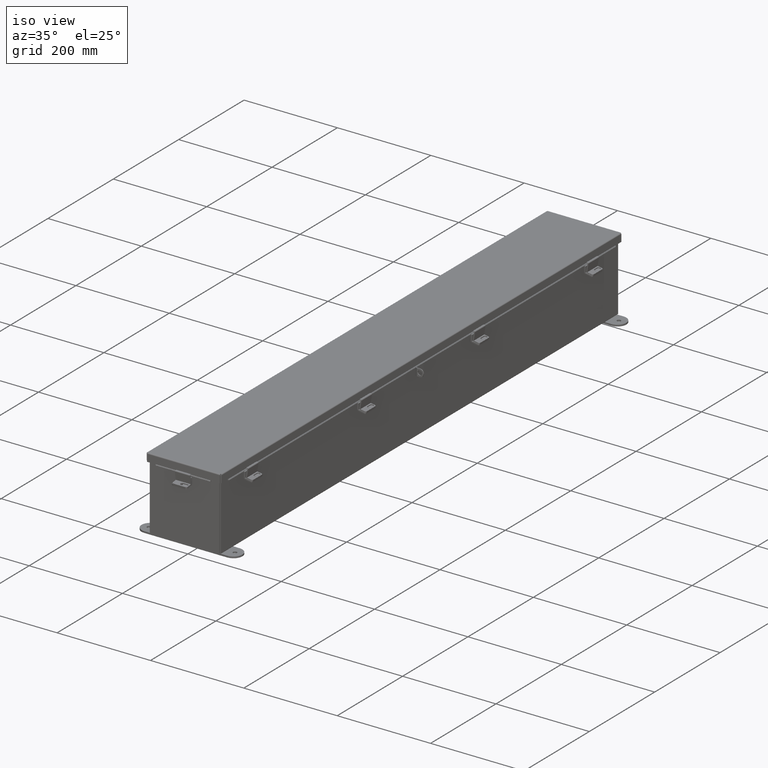
[diagram: clean part render]
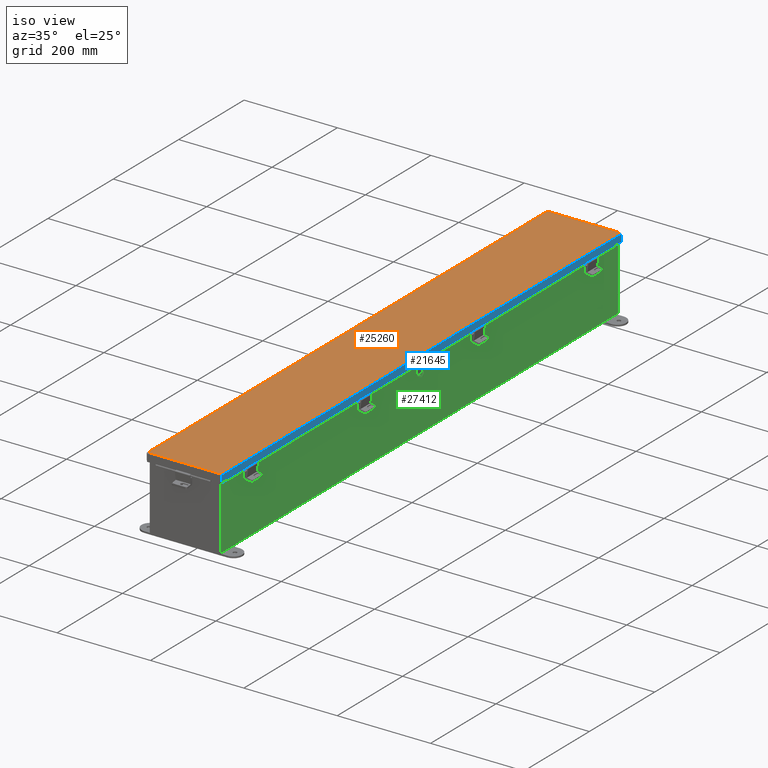
[diagram: same view with three faces highlighted in distinct colors, each labeled with its STEP entity id]
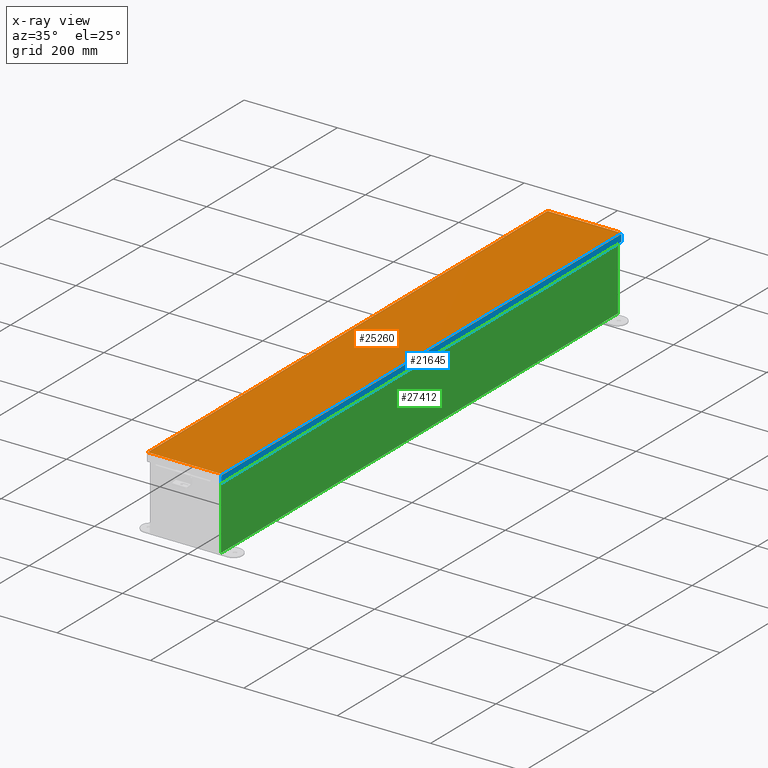
[diagram: x-ray of the same camera — body ghosted, the three highlighted faces saturated]
A machine part, iso view with three faces highlighted in distinct colors.
The next image is the same camera in x-ray (body ghosted, the three faces saturated) — at least one of them is partly hidden behind the body in this view.
Their STEP definitions:

[orange] entity #25260 — the highlighted planar face has unit normal (0, -0, 1).
#2029 = PLANE ( 'NONE',  #34678 ) ;
#2729 = FACE_OUTER_BOUND ( 'NONE', #16611, .T. ) ;
#3243 = DIRECTION ( 'NONE',  ( 3.777126213078897300E-030, 1.000000000000000000, -8.874685183736382800E-031 ) ) ;
#4338 = VECTOR ( 'NONE', #30733, 39.37007874015748100 ) ;
#6095 = CARTESIAN_POINT ( 'NONE',  ( -3.068550000000013000, -24.07447893218812500, -0.07470000000000125200 ) ) ;
#8213 = VERTEX_POINT ( 'NONE', #31915 ) ;
#9779 = VERTEX_POINT ( 'NONE', #20418 ) ;
#9999 = CARTESIAN_POINT ( 'NONE',  ( -3.068550000000013400, 24.06855000000000500, -0.07470000000000015500 ) ) ;
#10004 = VERTEX_POINT ( 'NONE', #27164 ) ;
#10557 = DIRECTION ( 'NONE',  ( 7.888609052210086500E-031, 5.916456789157564900E-031, -1.000000000000000000 ) ) ;
#10753 = DIRECTION ( 'NONE',  ( -1.000000000000000000, -3.826430019655189500E-030, -7.888609052210086500E-031 ) ) ;
#10808 = ORIENTED_EDGE ( 'NONE', *, *, #22048, .T. ) ;
#11849 = LINE ( 'NONE', #16022, #4338 ) ;
#13028 = LINE ( 'NONE', #6095, #32908 ) ;
#13086 = ORIENTED_EDGE ( 'NONE', *, *, #27652, .T. ) ;
#13115 = VERTEX_POINT ( 'NONE', #9999 ) ;
#16022 = CARTESIAN_POINT ( 'NONE',  ( -3.074478932188149800, 24.06855000000000500, -0.07470000000000015500 ) ) ;
#16611 = EDGE_LOOP ( 'NONE', ( #25605, #23640, #13086, #10808 ) ) ;
#19388 = VECTOR ( 'NONE', #36541, 39.37007874015748100 ) ;
#19657 = CARTESIAN_POINT ( 'NONE',  ( 3.068550000000006300, 24.07447893218813600, -0.07469999999999907300 ) ) ;
#20304 = VECTOR ( 'NONE', #10753, 39.37007874015748100 ) ;
#20418 = CARTESIAN_POINT ( 'NONE',  ( 3.068550000000006300, 24.06855000000000500, -0.07469999999999907300 ) ) ;
#22048 = EDGE_CURVE ( 'NONE', #8213, #13115, #13028, .T. ) ;
#22126 = CARTESIAN_POINT ( 'NONE',  ( 3.074478932188143200, -24.06855000000000200, -0.07470000000000015500 ) ) ;
#23640 = ORIENTED_EDGE ( 'NONE', *, *, #28238, .T. ) ;
#25128 = LINE ( 'NONE', #19657, #19388 ) ;
#25260 = ADVANCED_FACE ( 'NONE', ( #2729 ), #2029, .T. ) ;
#25605 = ORIENTED_EDGE ( 'NONE', *, *, #28182, .T. ) ;
#27164 = CARTESIAN_POINT ( 'NONE',  ( 3.068550000000006800, -24.06855000000000200, -0.07470000000000015500 ) ) ;
#27473 = CARTESIAN_POINT ( 'NONE',  ( 0.0000000000000000000, -4.802076551362963100E-018, -0.07470000000000015500 ) ) ;
#27652 = EDGE_CURVE ( 'NONE', #10004, #8213, #27798, .T. ) ;
#27798 = LINE ( 'NONE', #22126, #20304 ) ;
#28182 = EDGE_CURVE ( 'NONE', #13115, #9779, #11849, .T. ) ;
#28238 = EDGE_CURVE ( 'NONE', #9779, #10004, #25128, .T. ) ;
#30287 = DIRECTION ( 'NONE',  ( -1.000000000000000000, -3.826430019655189500E-030, -7.888609052210086500E-031 ) ) ;
#30733 = DIRECTION ( 'NONE',  ( 1.000000000000000000, 3.826430019655189500E-030, 7.888609052210086500E-031 ) ) ;
#31915 = CARTESIAN_POINT ( 'NONE',  ( -3.068550000000013000, -24.06855000000000200, -0.07470000000000125200 ) ) ;
#32908 = VECTOR ( 'NONE', #3243, 39.37007874015748100 ) ;
#34678 = AXIS2_PLACEMENT_3D ( 'NONE', #27473, #10557, #30287 ) ;
#36541 = DIRECTION ( 'NONE',  ( -3.777126213078897300E-030, -1.000000000000000000, 8.874685183736382800E-031 ) ) ;

[blue] entity #21645 — the highlighted planar face has unit normal (-1, 0, -0).
#396 = DIRECTION ( 'NONE',  ( 3.777126213078897300E-030, 1.000000000000000000, -8.874685183736382800E-031 ) ) ;
#1006 = VECTOR ( 'NONE', #19811, 39.37007874015748100 ) ;
#1103 = LINE ( 'NONE', #24577, #14364 ) ;
#1563 = CARTESIAN_POINT ( 'NONE',  ( -3.156250000000015100, 0.0000000000000000000, 0.6122999999999994000 ) ) ;
#1644 = EDGE_LOOP ( 'NONE', ( #24758, #20666, #9198, #14357, #36323, #23340, #27681, #28835 ) ) ;
#2159 = CARTESIAN_POINT ( 'NONE',  ( -3.156250000000015100, 23.32447893218813600, 0.6123000000000005100 ) ) ;
#2182 = EDGE_CURVE ( 'NONE', #6908, #17760, #21444, .T. ) ;
#3225 = CARTESIAN_POINT ( 'NONE',  ( -3.156250000000015100, -23.32447893218812500, 0.6122999999999994000 ) ) ;
#4781 = VERTEX_POINT ( 'NONE', #23528 ) ;
#5622 = VECTOR ( 'NONE', #27010, 39.37007874015748100 ) ;
#6557 = LINE ( 'NONE', #6612, #20719 ) ;
#6612 = CARTESIAN_POINT ( 'NONE',  ( -3.156250000000008000, -24.07447893218813200, -1.202013117212275700E-014 ) ) ;
#6791 = VERTEX_POINT ( 'NONE', #10877 ) ;
#6908 = VERTEX_POINT ( 'NONE', #11493 ) ;
#6950 = CARTESIAN_POINT ( 'NONE',  ( -3.156250000000008000, 0.0000000000000000000, -1.202013117212275700E-014 ) ) ;
#7753 = VERTEX_POINT ( 'NONE', #29972 ) ;
#8219 = LINE ( 'NONE', #14875, #26329 ) ;
#8519 = LINE ( 'NONE', #31011, #1006 ) ;
#9198 = ORIENTED_EDGE ( 'NONE', *, *, #29927, .F. ) ;
#9328 = DIRECTION ( 'NONE',  ( -3.569293475308526100E-015, -5.916456789157564900E-031, 1.000000000000000000 ) ) ;
#10498 = VERTEX_POINT ( 'NONE', #2159 ) ;
#10797 = VECTOR ( 'NONE', #396, 39.37007874015748100 ) ;
#10877 = CARTESIAN_POINT ( 'NONE',  ( -3.156250000000015100, 23.32447893218812900, 0.5967115427318782100 ) ) ;
#11346 = LINE ( 'NONE', #1563, #5622 ) ;
#11493 = CARTESIAN_POINT ( 'NONE',  ( -3.156250000000015100, -23.32447893218810000, 0.5967115427318772100 ) ) ;
#12561 = VECTOR ( 'NONE', #24834, 39.37007874015748100 ) ;
#14357 = ORIENTED_EDGE ( 'NONE', *, *, #29974, .F. ) ;
#14364 = VECTOR ( 'NONE', #16030, 39.37007874015748100 ) ;
#14875 = CARTESIAN_POINT ( 'NONE',  ( -3.156250000000018200, 23.32447893218813600, 0.6123000000000005100 ) ) ;
#15908 = EDGE_CURVE ( 'NONE', #10498, #4781, #18293, .T. ) ;
#15910 = CARTESIAN_POINT ( 'NONE',  ( -3.156250000000014200, -23.32447893218810000, 0.5967115427318772100 ) ) ;
#16030 = DIRECTION ( 'NONE',  ( -3.569293475308526100E-015, -5.916456789157564900E-031, 1.000000000000000000 ) ) ;
#16293 = CARTESIAN_POINT ( 'NONE',  ( -3.156250000000008000, 24.15625000000000000, 0.01300000000000010700 ) ) ;
#16839 = CARTESIAN_POINT ( 'NONE',  ( -3.156250000000008000, 24.07447893218813600, 0.01299999999999901400 ) ) ;
#17760 = VERTEX_POINT ( 'NONE', #3225 ) ;
#18125 = VERTEX_POINT ( 'NONE', #19136 ) ;
#18293 = LINE ( 'NONE', #22981, #10797 ) ;
#18320 = DIRECTION ( 'NONE',  ( 3.569293475308526100E-015, 5.916456789157564900E-031, -1.000000000000000000 ) ) ;
#19136 = CARTESIAN_POINT ( 'NONE',  ( -3.156250000000008000, -24.07447893218812500, 0.01299999999999792100 ) ) ;
#19811 = DIRECTION ( 'NONE',  ( -3.777126213078898000E-030, -1.000000000000000000, 8.874685183736384600E-031 ) ) ;
#20570 = DIRECTION ( 'NONE',  ( 2.453473827042056900E-013, -2.803970088048054700E-013, -1.000000000000000000 ) ) ;
#20573 = VECTOR ( 'NONE', #35655, 39.37007874015748100 ) ;
#20666 = ORIENTED_EDGE ( 'NONE', *, *, #15908, .T. ) ;
#20719 = VECTOR ( 'NONE', #9328, 39.37007874015748100 ) ;
#21133 = EDGE_CURVE ( 'NONE', #7753, #17760, #11346, .T. ) ;
#21444 = LINE ( 'NONE', #15910, #20573 ) ;
#21556 = EDGE_CURVE ( 'NONE', #10498, #6791, #8219, .T. ) ;
#21645 = ADVANCED_FACE ( 'NONE', ( #30279 ), #32384, .F. ) ;
#22935 = VERTEX_POINT ( 'NONE', #16839 ) ;
#22981 = CARTESIAN_POINT ( 'NONE',  ( -3.156250000000015100, 0.0000000000000000000, 0.6122999999999994000 ) ) ;
#23340 = ORIENTED_EDGE ( 'NONE', *, *, #21133, .T. ) ;
#23528 = CARTESIAN_POINT ( 'NONE',  ( -3.156250000000015100, 24.07447893218813600, 0.6122999999999994000 ) ) ;
#24577 = CARTESIAN_POINT ( 'NONE',  ( -3.156250000000008000, 24.07447893218813600, 0.0000000000000000000 ) ) ;
#24758 = ORIENTED_EDGE ( 'NONE', *, *, #21556, .F. ) ;
#24834 = DIRECTION ( 'NONE',  ( 3.861707972790487500E-030, 1.000000000000000000, 3.392721958496277400E-017 ) ) ;
#26329 = VECTOR ( 'NONE', #20570, 39.37007874015748100 ) ;
#26746 = EDGE_CURVE ( 'NONE', #18125, #7753, #6557, .T. ) ;
#27010 = DIRECTION ( 'NONE',  ( 3.777126213078897300E-030, 1.000000000000000000, -8.874685183736382800E-031 ) ) ;
#27681 = ORIENTED_EDGE ( 'NONE', *, *, #2182, .F. ) ;
#28835 = ORIENTED_EDGE ( 'NONE', *, *, #31316, .F. ) ;
#29927 = EDGE_CURVE ( 'NONE', #22935, #4781, #1103, .T. ) ;
#29972 = CARTESIAN_POINT ( 'NONE',  ( -3.156250000000015100, -24.07447893218812500, 0.6122999999999994000 ) ) ;
#29974 = EDGE_CURVE ( 'NONE', #18125, #22935, #35095, .T. ) ;
#30279 = FACE_OUTER_BOUND ( 'NONE', #1644, .T. ) ;
#31011 = CARTESIAN_POINT ( 'NONE',  ( -3.156250000000014200, 23.32447893218812500, 0.5967115427318782100 ) ) ;
#31316 = EDGE_CURVE ( 'NONE', #6791, #6908, #8519, .T. ) ;
#32384 = PLANE ( 'NONE',  #33402 ) ;
#33402 = AXIS2_PLACEMENT_3D ( 'NONE', #6950, #35221, #18320 ) ;
#35095 = LINE ( 'NONE', #16293, #12561 ) ;
#35221 = DIRECTION ( 'NONE',  ( 1.000000000000000000, 3.827267365164366100E-030, 3.569293475308526100E-015 ) ) ;
#35655 = DIRECTION ( 'NONE',  ( -7.009925220119514400E-014, -1.682382052828678100E-012, 1.000000000000000000 ) ) ;
#36323 = ORIENTED_EDGE ( 'NONE', *, *, #26746, .T. ) ;

[green] entity #27412 — the highlighted planar face has unit normal (-1, 0, 0).
#4 = EDGE_LOOP ( 'NONE', ( #23713, #14377, #26940, #16882 ) ) ;
#84 = LINE ( 'NONE', #31766, #35846 ) ;
#1190 = VERTEX_POINT ( 'NONE', #23220 ) ;
#2171 = EDGE_CURVE ( 'NONE', #16577, #28621, #7292, .T. ) ;
#3372 = EDGE_CURVE ( 'NONE', #16577, #32584, #34644, .T. ) ;
#5350 = EDGE_CURVE ( 'NONE', #1190, #32584, #84, .T. ) ;
#6685 = EDGE_CURVE ( 'NONE', #28621, #1190, #9240, .T. ) ;
#7292 = LINE ( 'NONE', #7396, #35558 ) ;
#7396 = CARTESIAN_POINT ( 'NONE',  ( 2.999999999999997300, 23.92530000000000000, -1.062859610035002400E-014 ) ) ;
#8264 = AXIS2_PLACEMENT_3D ( 'NONE', #29386, #12470, #32237 ) ;
#8369 = VECTOR ( 'NONE', #18926, 39.37007874015748100 ) ;
#9240 = LINE ( 'NONE', #27311, #8369 ) ;
#9934 = CARTESIAN_POINT ( 'NONE',  ( 3.000000000000017800, 23.92529999999997200, 5.837599999999999200 ) ) ;
#12014 = DIRECTION ( 'NONE',  ( -3.455316574900958600E-015, 0.0000000000000000000, -1.000000000000000000 ) ) ;
#12324 = FACE_OUTER_BOUND ( 'NONE', #4, .T. ) ;
#12470 = DIRECTION ( 'NONE',  ( -1.000000000000000000, 0.0000000000000000000, 3.455316574900958600E-015 ) ) ;
#14377 = ORIENTED_EDGE ( 'NONE', *, *, #5350, .T. ) ;
#16577 = VERTEX_POINT ( 'NONE', #26038 ) ;
#16882 = ORIENTED_EDGE ( 'NONE', *, *, #2171, .T. ) ;
#17462 = CARTESIAN_POINT ( 'NONE',  ( 2.999999999999997300, -23.92529999999998200, 0.01299999999999984300 ) ) ;
#18926 = DIRECTION ( 'NONE',  ( -0.0000000000000000000, -1.000000000000000000, -0.0000000000000000000 ) ) ;
#19682 = VECTOR ( 'NONE', #29098, 39.37007874015748100 ) ;
#23220 = CARTESIAN_POINT ( 'NONE',  ( 3.000000000000017800, -23.92529999999998600, 5.837599999999999200 ) ) ;
#23713 = ORIENTED_EDGE ( 'NONE', *, *, #6685, .T. ) ;
#26038 = CARTESIAN_POINT ( 'NONE',  ( 2.999999999999997300, 23.92529999999998900, 0.01299999999999984300 ) ) ;
#26940 = ORIENTED_EDGE ( 'NONE', *, *, #3372, .F. ) ;
#27311 = CARTESIAN_POINT ( 'NONE',  ( 3.000000000000017800, 23.92529999999999600, 5.837599999999999200 ) ) ;
#27412 = ADVANCED_FACE ( 'NONE', ( #12324 ), #32117, .F. ) ;
#28621 = VERTEX_POINT ( 'NONE', #9934 ) ;
#29098 = DIRECTION ( 'NONE',  ( -0.0000000000000000000, -1.000000000000000000, -0.0000000000000000000 ) ) ;
#29215 = CARTESIAN_POINT ( 'NONE',  ( 2.999999999999997300, -23.92529999999998600, 0.01299999999999984300 ) ) ;
#29386 = CARTESIAN_POINT ( 'NONE',  ( 2.999999999999997300, 0.0000000000000000000, -1.062859610035002400E-014 ) ) ;
#29981 = DIRECTION ( 'NONE',  ( 3.455316574900958600E-015, 0.0000000000000000000, 1.000000000000000000 ) ) ;
#31766 = CARTESIAN_POINT ( 'NONE',  ( 2.999999999999997300, -23.92529999999998600, -1.062859610035002400E-014 ) ) ;
#32117 = PLANE ( 'NONE',  #8264 ) ;
#32237 = DIRECTION ( 'NONE',  ( 3.455316574900958600E-015, 0.0000000000000000000, 1.000000000000000000 ) ) ;
#32584 = VERTEX_POINT ( 'NONE', #17462 ) ;
#34644 = LINE ( 'NONE', #29215, #19682 ) ;
#35558 = VECTOR ( 'NONE', #29981, 39.37007874015748100 ) ;
#35846 = VECTOR ( 'NONE', #12014, 39.37007874015748100 ) ;